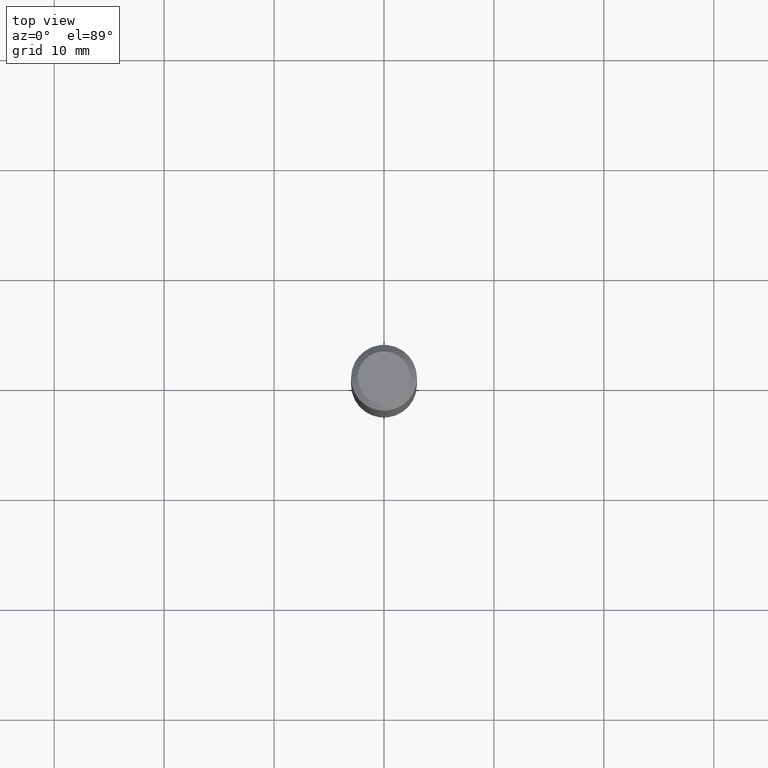
[diagram: clean part render]
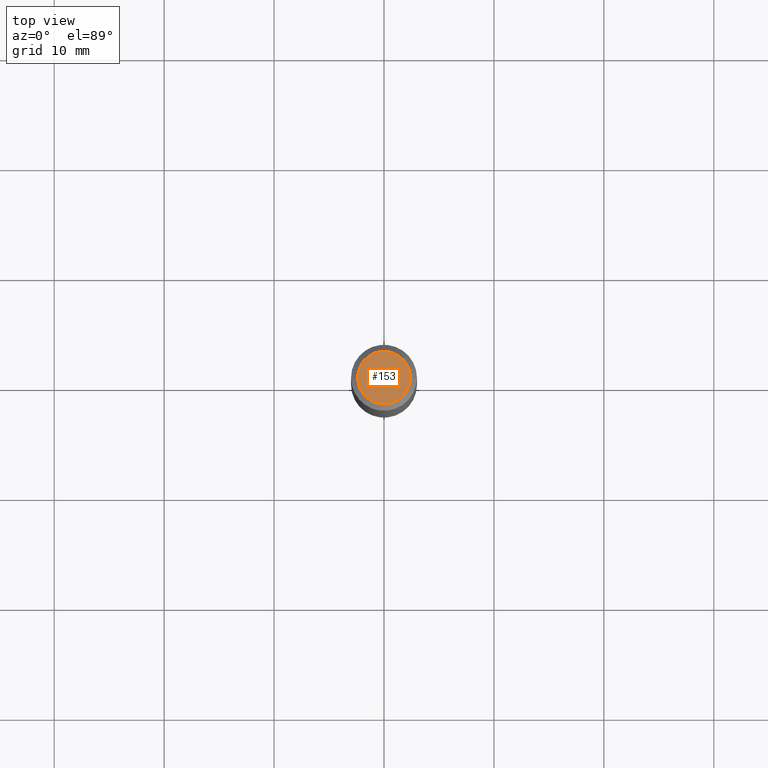
[diagram: same view with one face highlighted and labeled with its STEP entity id]
A machine part, top view. The second image highlights one B-rep face of the part: STEP entity #153.
In plain terms, the highlighted planar face has unit normal (0, -0, -1).
Its self-contained STEP definition (entity closure, byte-faithful):
#22 = DIRECTION ( 'NONE',  ( -2.445468806185136597E-29, 3.491481338843145583E-15, 1.000000000000000000 ) ) ;
#34 = CARTESIAN_POINT ( 'NONE',  ( 6.603013411620882309E-46, -9.427353171913646324E-32, -2.700101262760083747E-17 ) ) ;
#38 = AXIS2_PLACEMENT_3D ( 'NONE', #90, #377, #347 ) ;
#69 = CIRCLE ( 'NONE', #38, 0.09447999999999998066 ) ;
#75 = AXIS2_PLACEMENT_3D ( 'NONE', #34, #22, #447 ) ;
#78 = DIRECTION ( 'NONE',  ( -1.000000000000000000, 6.982962677686265922E-15, -4.876176775795935793E-29 ) ) ;
#80 = VERTEX_POINT ( 'NONE', #279 ) ;
#90 = CARTESIAN_POINT ( 'NONE',  ( 6.603013411620882309E-46, -9.427353171913646324E-32, -2.700101262760083747E-17 ) ) ;
#112 = CARTESIAN_POINT ( 'NONE',  ( 3.301506705810441154E-46, -4.713676585956823162E-32, -1.350050631380041873E-17 ) ) ;
#116 = DIRECTION ( 'NONE',  ( 2.438088387897960049E-29, -3.491481338843145188E-15, -1.000000000000000000 ) ) ;
#144 = CIRCLE ( 'NONE', #75, 0.09447999999999998066 ) ;
#145 = EDGE_CURVE ( 'NONE', #80, #222, #69, .T. ) ;
#153 = ADVANCED_FACE ( 'NONE', ( #237 ), #338, .F. ) ;
#163 = CARTESIAN_POINT ( 'NONE',  ( 0.09447999999999998066, -7.704367267948738690E-16, -2.700101262759583929E-17 ) ) ;
#222 = VERTEX_POINT ( 'NONE', #163 ) ;
#223 = ORIENTED_EDGE ( 'NONE', *, *, #145, .T. ) ;
#237 = FACE_OUTER_BOUND ( 'NONE', #457, .T. ) ;
#279 = CARTESIAN_POINT ( 'NONE',  ( -0.09447999999999998066, 7.009847083995354710E-16, -2.700101262760559836E-17 ) ) ;
#306 = ORIENTED_EDGE ( 'NONE', *, *, #334, .T. ) ;
#334 = EDGE_CURVE ( 'NONE', #222, #80, #144, .T. ) ;
#338 = PLANE ( 'NONE',  #473 ) ;
#347 = DIRECTION ( 'NONE',  ( 1.000000000000000000, -6.982962677686267499E-15, 4.875432709231658792E-29 ) ) ;
#377 = DIRECTION ( 'NONE',  ( -2.445468806185136597E-29, 3.491481338843145583E-15, 1.000000000000000000 ) ) ;
#447 = DIRECTION ( 'NONE',  ( 1.000000000000000000, -6.982962677686267499E-15, 4.875432709231658792E-29 ) ) ;
#457 = EDGE_LOOP ( 'NONE', ( #223, #306 ) ) ;
#473 = AXIS2_PLACEMENT_3D ( 'NONE', #112, #116, #78 ) ;